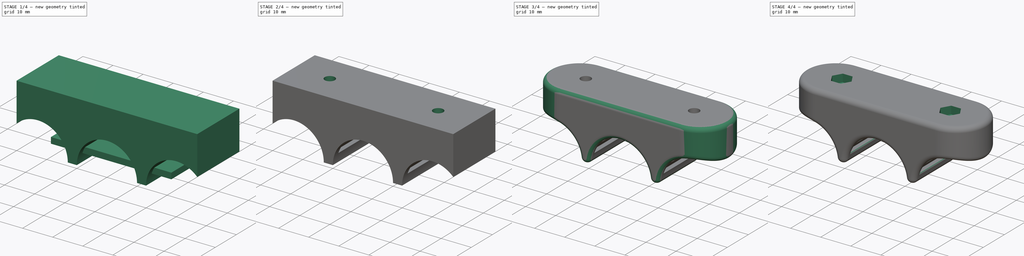
[diagram: build sequence overview — one tinted view per stage of 4, left to right]
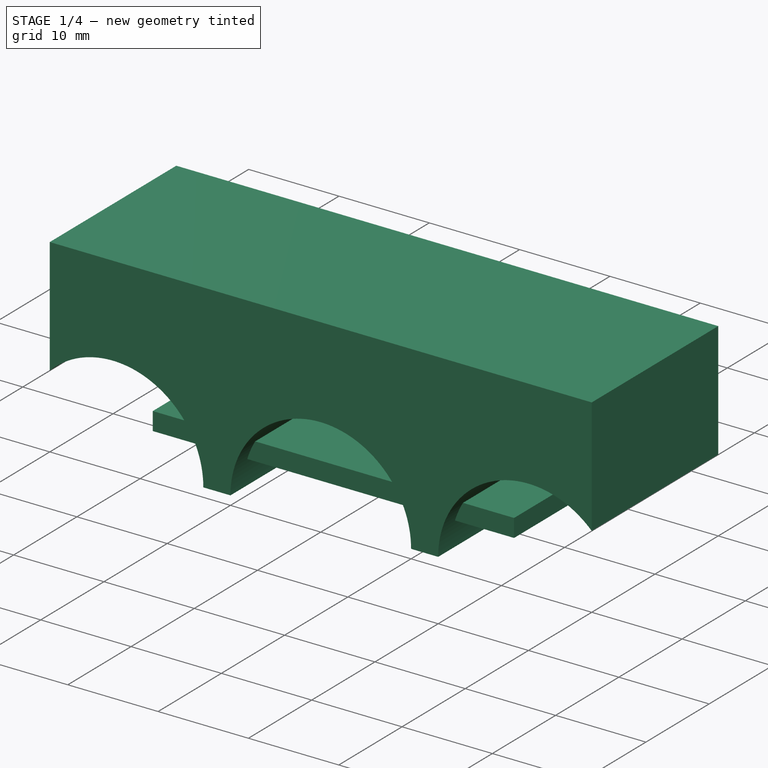
[diagram: stage 1 of 4 — iso view after this stage's code; geometry added in this stage tinted green]
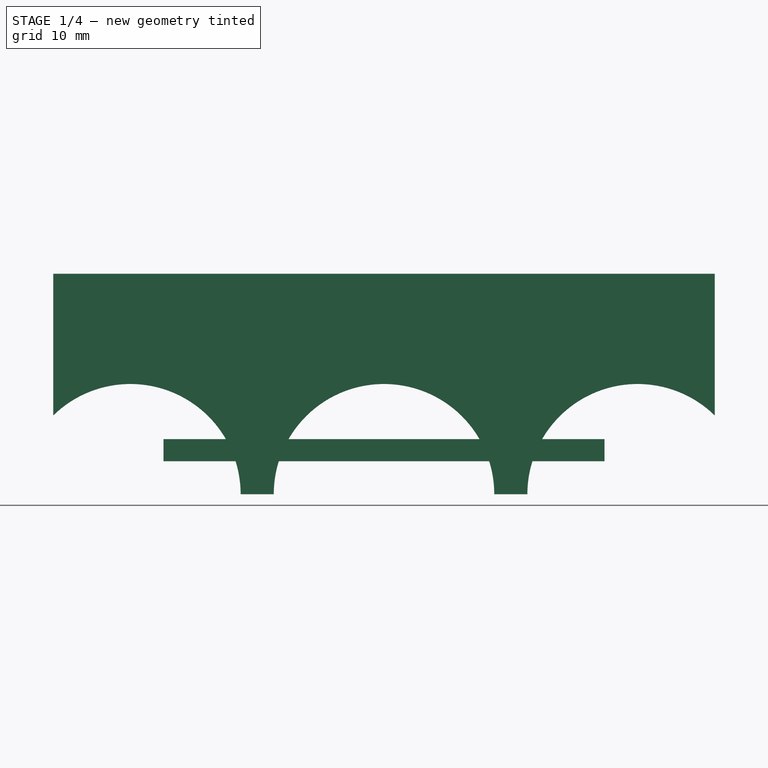
[diagram: stage 1 of 4 — front view after this stage's code; geometry added in this stage tinted green]
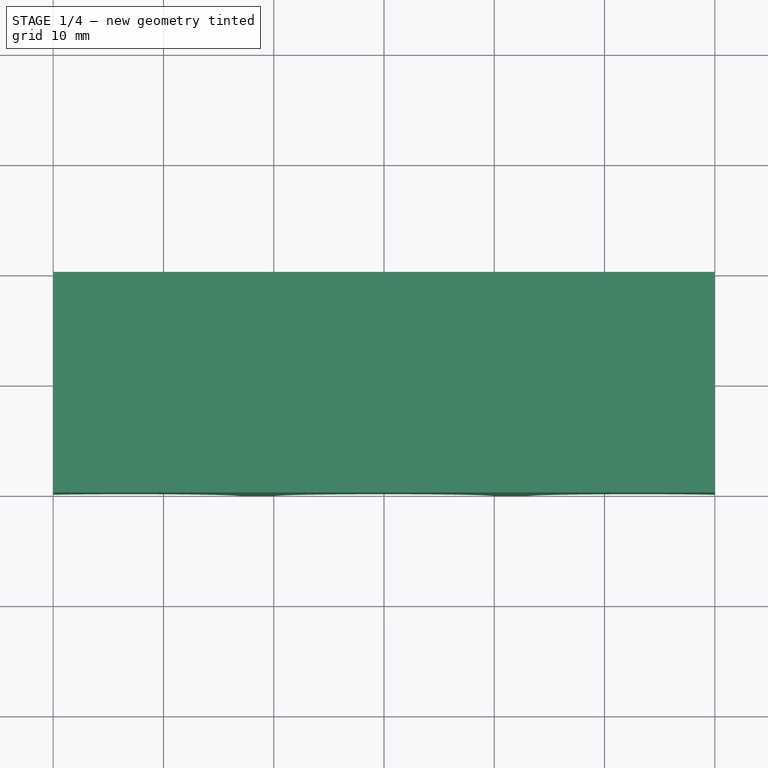
[diagram: stage 1 of 4 — top view after this stage's code; geometry added in this stage tinted green]
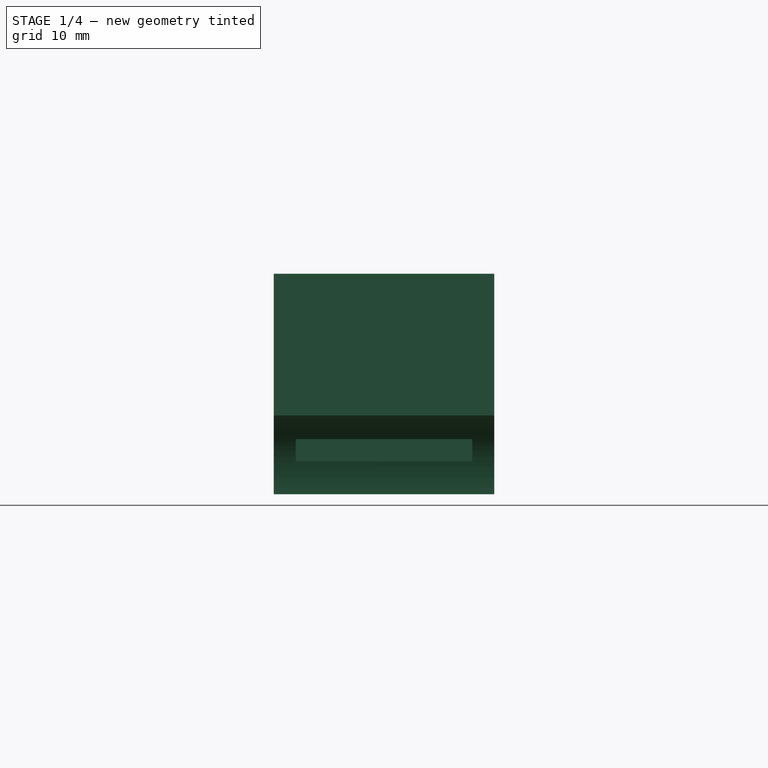
[diagram: stage 1 of 4 — right view after this stage's code; geometry added in this stage tinted green]
FCSTD DOCUMENT  (FreeCAD 0.22R36996 (Git))
Label: Finger_Jingle_test
License: All rights reserved
objects: Sketcher::SketchObject×6, PartDesign::Fillet×4, PartDesign::Pad×3, PartDesign::Pocket×3, PartDesign::Body×3, PartDesign::Chamfer×2, PartDesign::Plane×1, PartDesign::Boolean×1
note: 35 computed .brp shape members not serialized (recipe doc carries the construction recipe); baked Part::Feature solids carry a one-line shape summary decoded from their .brp

FEATURE [Sketcher::SketchObject] Sketch
  AttachmentSupport = -> [XZ_Plane]
  FullyConstrained = true
  MapMode = 5
  Placement = pos=(0,0,0) rot=(1,0,0;1.5708rad)
  sketch-geometry (8):
    g0: LineSegment StartX=-30 StartY=20 StartZ=0 EndX=-30 EndY=7.14143 EndZ=0
    g1: LineSegment StartX=-13 StartY=1.2e-15 StartZ=0 EndX=-10 EndY=1.2e-15 EndZ=0
    g2: LineSegment StartX=30 StartY=7.14143 StartZ=0 EndX=30 EndY=20 EndZ=0
    g3: LineSegment StartX=30 StartY=20 StartZ=0 EndX=-30 EndY=20 EndZ=0
    g4: ArcOfCircle CenterX=0 CenterY=0 CenterZ=0 NormalX=0 NormalY=0 NormalZ=1 AngleXU=0 Radius=10 StartAngle=0 EndAngle=3.14159
    g5: ArcOfCircle CenterX=-23 CenterY=0 CenterZ=0 NormalX=0 NormalY=0 NormalZ=1 AngleXU=0 Radius=10 StartAngle=0 EndAngle=2.34619
    g6: ArcOfCircle CenterX=23 CenterY=5e-16 CenterZ=0 NormalX=0 NormalY=0 NormalZ=1 AngleXU=0 Radius=10 StartAngle=0.795399 EndAngle=3.14159
    g7: LineSegment StartX=10 StartY=1.7e-15 StartZ=0 EndX=13 EndY=1.7e-15 EndZ=0
  constraints (26):
    c: Coincident(g2,g3)
    c: Coincident(g3,g0)
    c: Vertical(g0)
    c: Vertical(g2)
    c: Horizontal(g1)
    c: Horizontal(g3)
    c: Radius(g4) = 10
    c: Coincident(g4,g-1)
    c: Radius(g5) = 10
    c: PointOnObject(g5,g-1)
    c: DistanceX(g5,g4) = 23
    c: Radius(g6) = 10
    c: PointOnObject(g6,g1)
    c: DistanceX(g4,g6) = 23
    c: Coincident(g5,g0)
    c: Coincident(g5,g1)
    c: Coincident(g1,g4)
    c: Coincident(g7,g4)
    c: Coincident(g7,g6)
    c: Coincident(g2,g6)
    c: DistanceX(g3,g3) = 60
    c: DistanceY(g4,g0) = 20
    c: DistanceX(g0,g4) = 30
    c: Horizontal(g7)
    c: DistanceY(g1,g4) = 0
    c: DistanceY(g4,g4) = 0
FEATURE [PartDesign::Pad] Pad
  Direction = (0,-1,2e-16)
  Length = 20
  Length2 = 10
  Placement = pos=(0,0,0) rot=(1,0,0;1.5708rad)
  Profile = -> Sketch
  ReferenceAxis = -> Sketch [N_Axis]
  Suppressed = false
  Type = 0
FEATURE [Sketcher::SketchObject] Sketch004
  AttachmentSupport = -> [YZ_Plane001]
  FullyConstrained = true
  MapMode = 5
  Placement = pos=(0,0,0) rot=(0.57735,0.57735,0.57735;2.0944rad)
  sketch-geometry (4):
    g0: LineSegment StartX=-18 StartY=5 StartZ=0 EndX=-18 EndY=3 EndZ=0
    g1: LineSegment StartX=-18 StartY=3 StartZ=0 EndX=-2 EndY=3 EndZ=0
    g2: LineSegment StartX=-2 StartY=3 StartZ=0 EndX=-2 EndY=5 EndZ=0
    g3: LineSegment StartX=-2 StartY=5 StartZ=0 EndX=-18 EndY=5 EndZ=0
  constraints (12):
    c: Coincident(g0,g1)
    c: Coincident(g1,g2)
    c: Coincident(g2,g3)
    c: Coincident(g3,g0)
    c: Vertical(g0)
    c: Vertical(g2)
    c: Horizontal(g1)
    c: Horizontal(g3)
    c: DistanceX(g3,g3) = 16
    c: DistanceY(g0,g0) = 2
    c: DistanceX(g1,g-1) = 2
    c: DistanceY(g-1,g1) = 3
FEATURE [PartDesign::Pad] Pad001
  Direction = (1,0,0)
  Length = 20
  Length2 = 20
  Placement = pos=(0,0,0) rot=(0.57735,0.57735,0.57735;2.0944rad)
  Profile = -> Sketch004
  ReferenceAxis = -> Sketch004 [N_Axis]
  Suppressed = false
  Type = 4
FEATURE [PartDesign::Body] Body001
  Group = -> [Sketch004,Pad001]
  Origin = -> Origin001
  Tip = -> Pad001
FEATURE [Sketcher::SketchObject] Sketch005
  AttachmentSupport = -> [YZ_Plane002]
  FullyConstrained = true
  MapMode = 5
  Placement = pos=(0,0,0) rot=(0.57735,0.57735,0.57735;2.0944rad)
  sketch-geometry (4):
    g0: LineSegment StartX=-18 StartY=5 StartZ=0 EndX=-18 EndY=3 EndZ=0
    g1: LineSegment StartX=-18 StartY=3 StartZ=0 EndX=-2 EndY=3 EndZ=0
    g2: LineSegment StartX=-2 StartY=3 StartZ=0 EndX=-2 EndY=5 EndZ=0
    g3: LineSegment StartX=-2 StartY=5 StartZ=0 EndX=-18 EndY=5 EndZ=0
  constraints (12):
    c: Coincident(g0,g1)
    c: Coincident(g1,g2)
    c: Coincident(g2,g3)
    c: Coincident(g3,g0)
    c: Vertical(g0)
    c: Vertical(g2)
    c: Horizontal(g1)
    c: Horizontal(g3)
    c: DistanceX(g3,g3) = 16
    c: DistanceY(g0,g0) = 2
    c: DistanceX(g1,g-1) = 2
    c: DistanceY(g-1,g1) = 3
FEATURE [PartDesign::Pad] Pad002
  Direction = (1,0,0)
  Length = 20
  Length2 = 20
  Placement = pos=(0,0,0) rot=(0.57735,0.57735,0.57735;2.0944rad)
  Profile = -> Sketch005
  ReferenceAxis = -> Sketch005 [N_Axis]
  Suppressed = false
  Type = 4
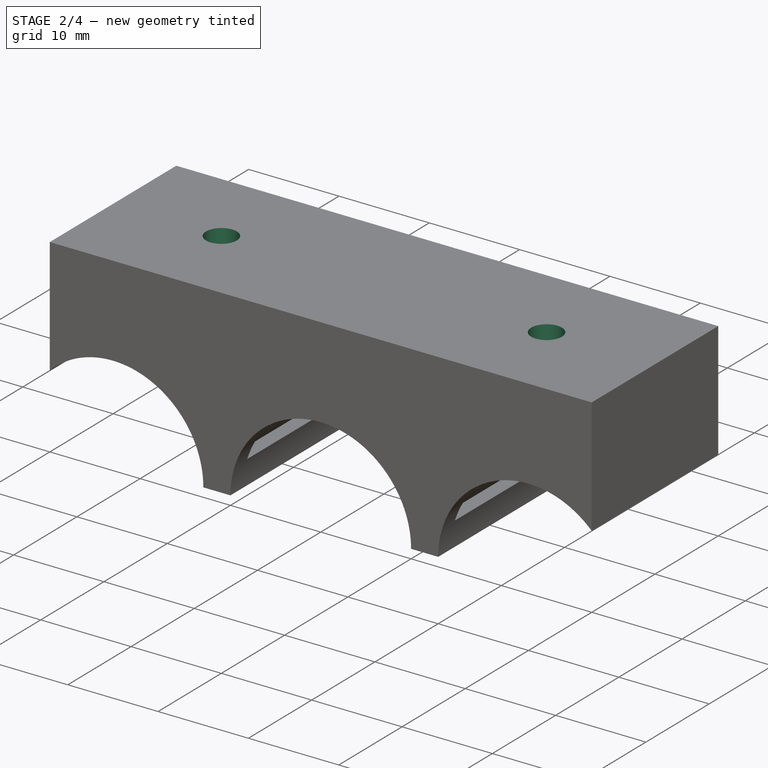
[diagram: stage 2 of 4 — iso view after this stage's code; geometry added in this stage tinted green]
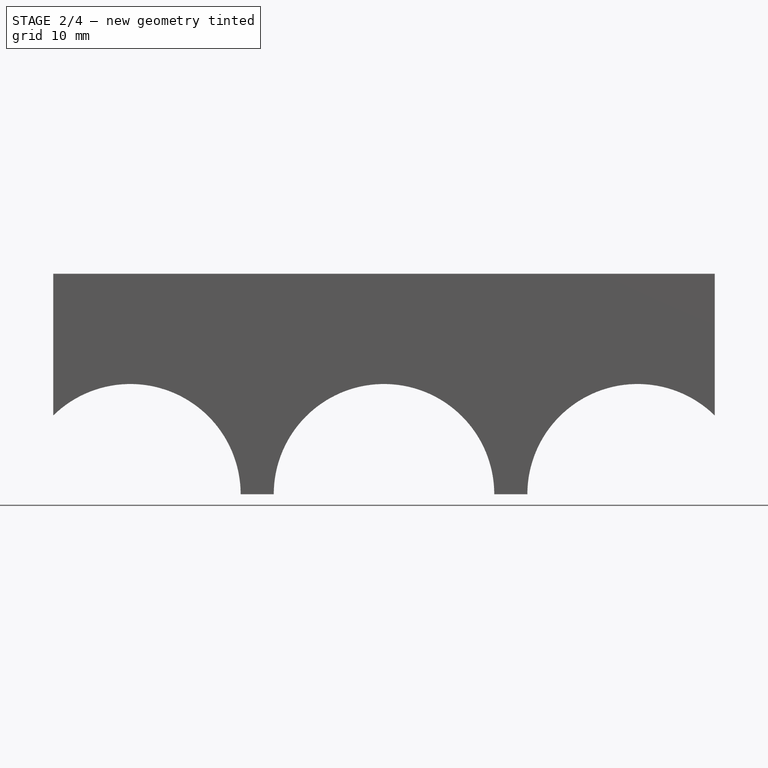
[diagram: stage 2 of 4 — front view after this stage's code; geometry added in this stage tinted green]
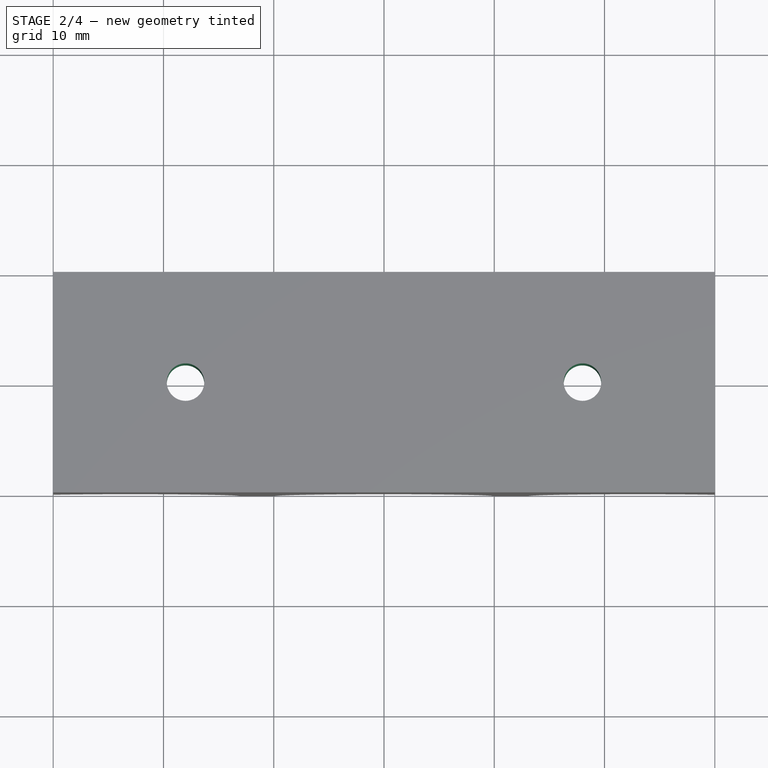
[diagram: stage 2 of 4 — top view after this stage's code; geometry added in this stage tinted green]
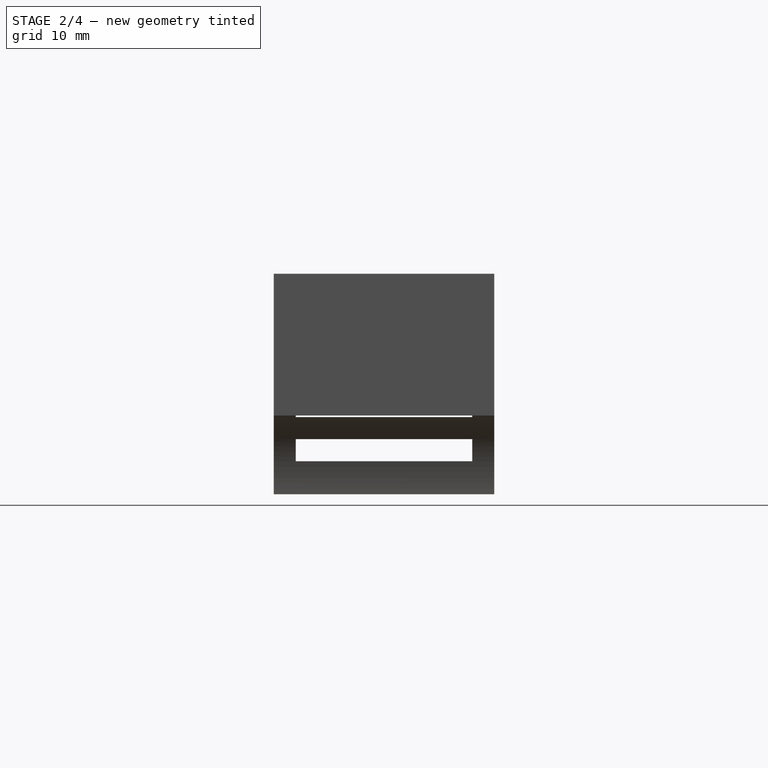
[diagram: stage 2 of 4 — right view after this stage's code; geometry added in this stage tinted green]
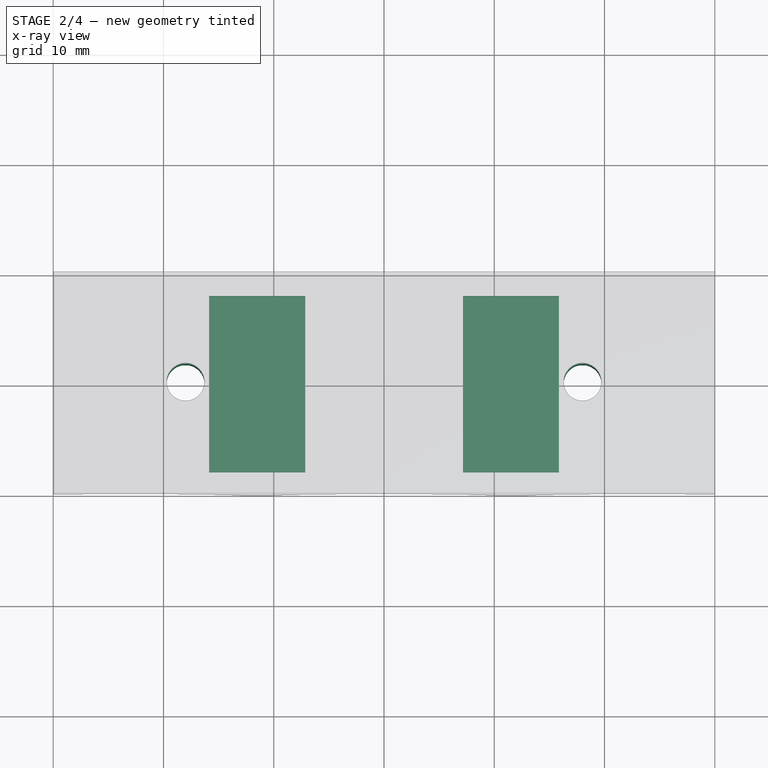
[diagram: stage 2 of 4 — x-ray composite at the top view; earlier geometry ghosted, this stage's added geometry solid]
FEATURE [Sketcher::SketchObject] Sketch001
  FullyConstrained = true
  MapMode = 5
  Placement = pos=(0,1.32e-14,20) rot=(0,0,1;3.14159rad)
  sketch-geometry (2):
    g0: Circle CenterX=-18 CenterY=10 CenterZ=0 NormalX=0 NormalY=0 NormalZ=1 AngleXU=0 Radius=1.7
    g1: Circle CenterX=18 CenterY=10 CenterZ=0 NormalX=0 NormalY=0 NormalZ=1 AngleXU=0 Radius=1.7
  constraints (6):
    c: Diameter(g0) = 3.4
    c: Diameter(g1) = 3.4
    c: DistanceY(g-1,g1) = 10
    c: DistanceY(g-1,g0) = 10
    c: DistanceX(g-1,g1) = 18
    c: DistanceX(g0,g-1) = 18
FEATURE [PartDesign::Pocket] Pocket
  BaseFeature = -> Pad
  Direction = (0,0,-1)
  Length = 14
  Length2 = 5
  Placement = pos=(0,0,0) rot=(1,0,0;1.5708rad)
  Profile = -> Sketch001
  ReferenceAxis = -> Sketch001 [N_Axis]
  Suppressed = false
  Type = 0
FEATURE [PartDesign::Plane] DatumPlane
  AttachmentOffset = pos=(-9,0,0) rot=(0,1,0;1.5708rad)
  Length = 70.9545
  MapMode = 5
  Placement = pos=(-30,0,9) rot=(1,0,0;3.14159rad)
  ResizeMode = 0
  Width = 60.9545
FEATURE [Sketcher::SketchObject] Sketch003
  AttachmentSupport = -> [DatumPlane]
  FullyConstrained = false
  MapMode = 5
  Placement = pos=(-30,0,9) rot=(1,0,0;3.14159rad)
  sketch-geometry (2):
    g0: Circle CenterX=12 CenterY=10 CenterZ=0 NormalX=0 NormalY=0 NormalZ=1 AngleXU=0 Radius=3
    g1: Circle CenterX=48.0093 CenterY=10 CenterZ=0 NormalX=0 NormalY=0 NormalZ=1 AngleXU=0 Radius=3
  constraints (5):
    c: Radius(g0) = 3
    c: Horizontal(g0,g1)
    c: DistanceX(g-1,g0) = 12
    c: DistanceY(g-1,g0) = 10
    c: Equal(g0,g1)
FEATURE [PartDesign::Chamfer] Chamfer
  Angle = 45
  Base = -> Pocket
  BaseFeature = -> Pocket
  ChamferType = 0
  FlipDirection = false
  Placement = pos=(0,0,0) rot=(1,0,0;1.5708rad)
  Size = 1.29
  Size2 = 1
  SupportTransform = false
  Suppressed = false
  UseAllEdges = false
FEATURE [PartDesign::Body] Body002
  Group = -> [Sketch005,Pad002]
  Origin = -> Origin002
  Placement = pos=(0,0,4) rot=(0,0,1;0rad)
  Tip = -> Pad002
FEATURE [PartDesign::Boolean] Boolean
  BaseFeature = -> Chamfer
  Group = -> [Body002,Body001]
  Suppressed = false
  Type = 1
  UsePlacement = true
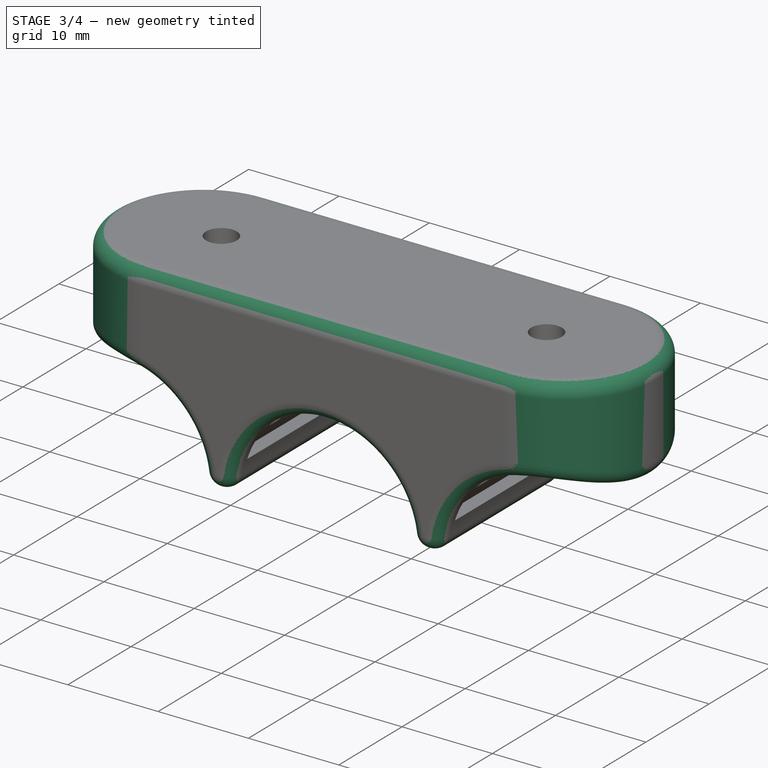
[diagram: stage 3 of 4 — iso view after this stage's code; geometry added in this stage tinted green]
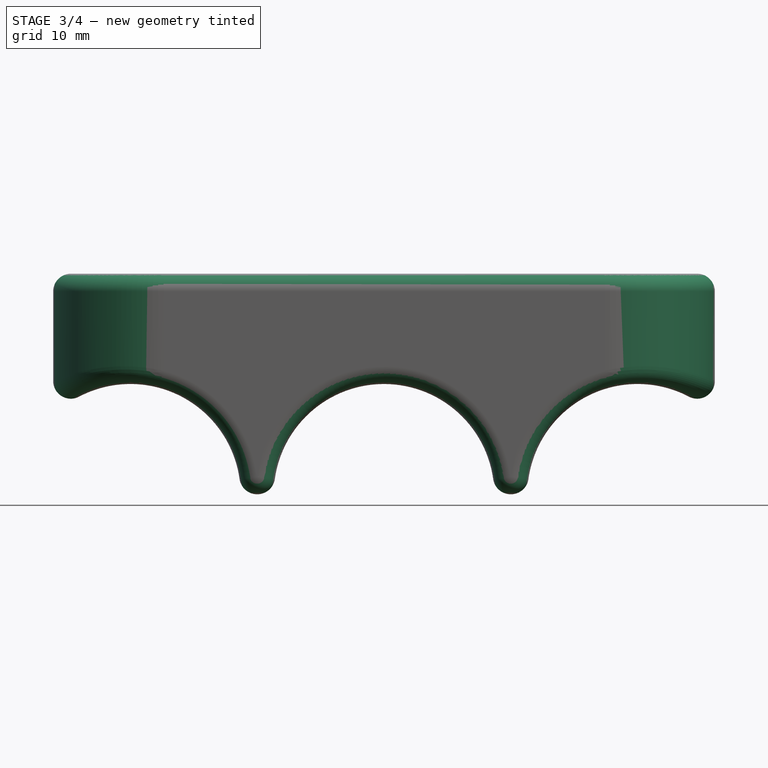
[diagram: stage 3 of 4 — front view after this stage's code; geometry added in this stage tinted green]
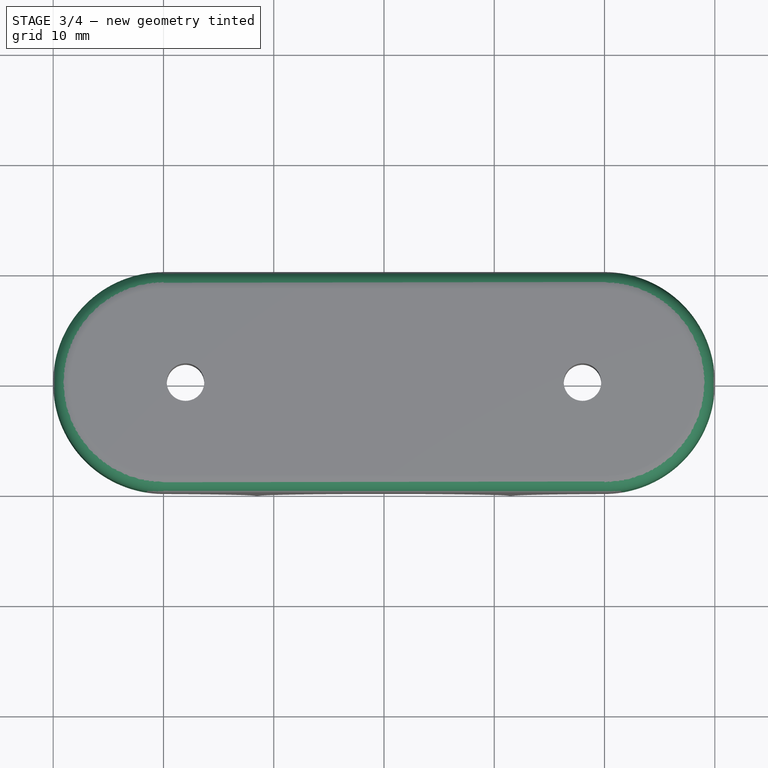
[diagram: stage 3 of 4 — top view after this stage's code; geometry added in this stage tinted green]
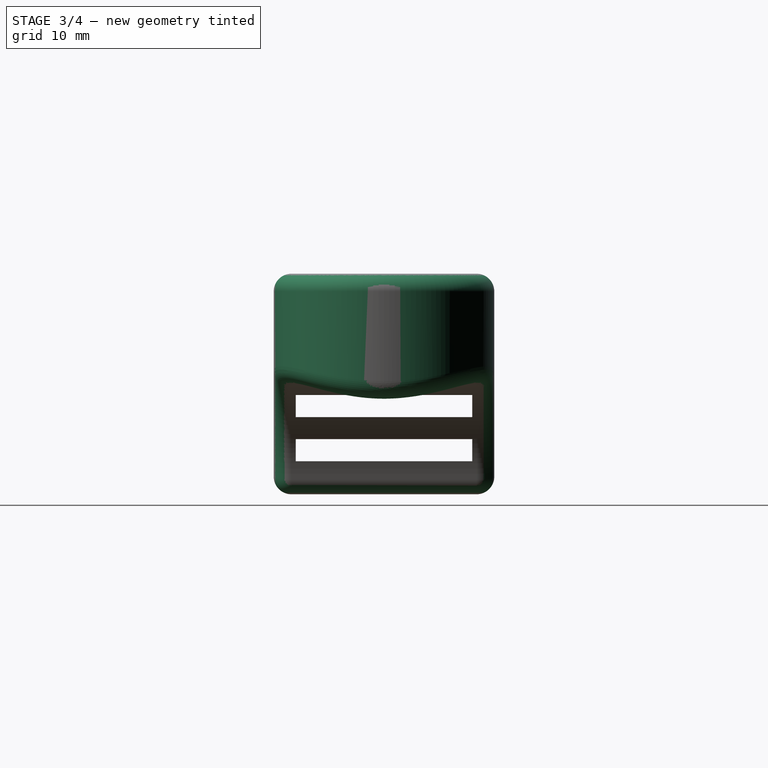
[diagram: stage 3 of 4 — right view after this stage's code; geometry added in this stage tinted green]
FEATURE [PartDesign::Fillet] Fillet
  Base = -> Boolean [Edge3,Edge4,Edge23,Edge28]
  BaseFeature = -> Boolean
  Radius = 9.999
  SupportTransform = false
  Suppressed = false
  UseAllEdges = false
FEATURE [PartDesign::Fillet] Fillet001
  Base = -> Fillet [Edge21,Edge24,Edge26,Edge27,Edge25,Edge23]
  BaseFeature = -> Fillet
  Radius = 1.6
  SupportTransform = false
  Suppressed = false
  UseAllEdges = false
FEATURE [PartDesign::Fillet] Fillet002
  Base = -> Fillet001 [Face25,Face11,Edge12,Edge33,Edge32,Edge48]
  BaseFeature = -> Fillet001
  Radius = 1.6
  SupportTransform = false
  Suppressed = false
  UseAllEdges = false
FEATURE [PartDesign::Pocket] Pocket001
  BaseFeature = -> Fillet002
  Direction = (0,0,1)
  Length = 3
  Length2 = 5
  Profile = -> Sketch003
  ReferenceAxis = -> Sketch003 [N_Axis]
  Suppressed = false
  Type = 0
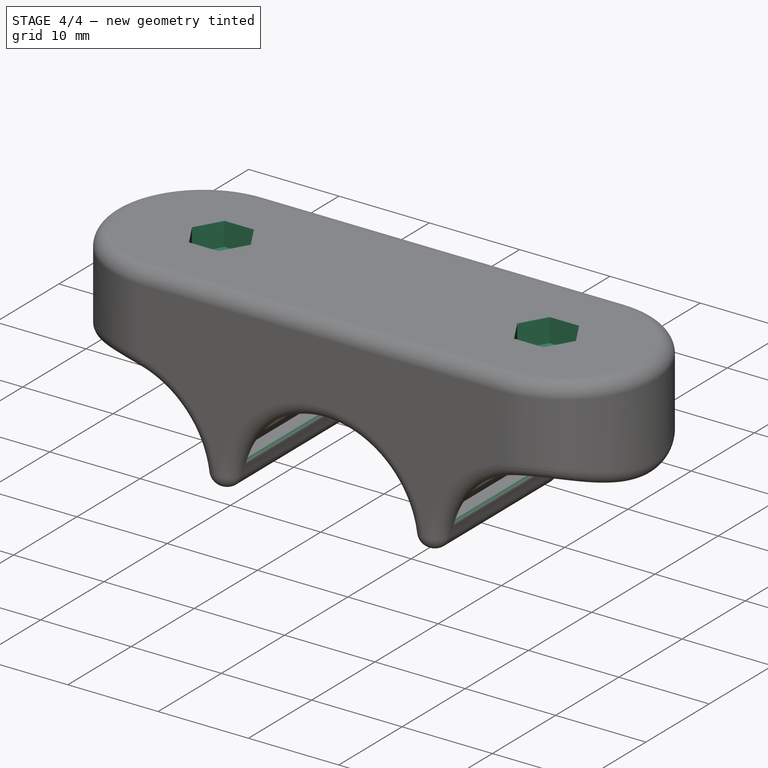
[diagram: stage 4 of 4 — iso view after this stage's code; geometry added in this stage tinted green]
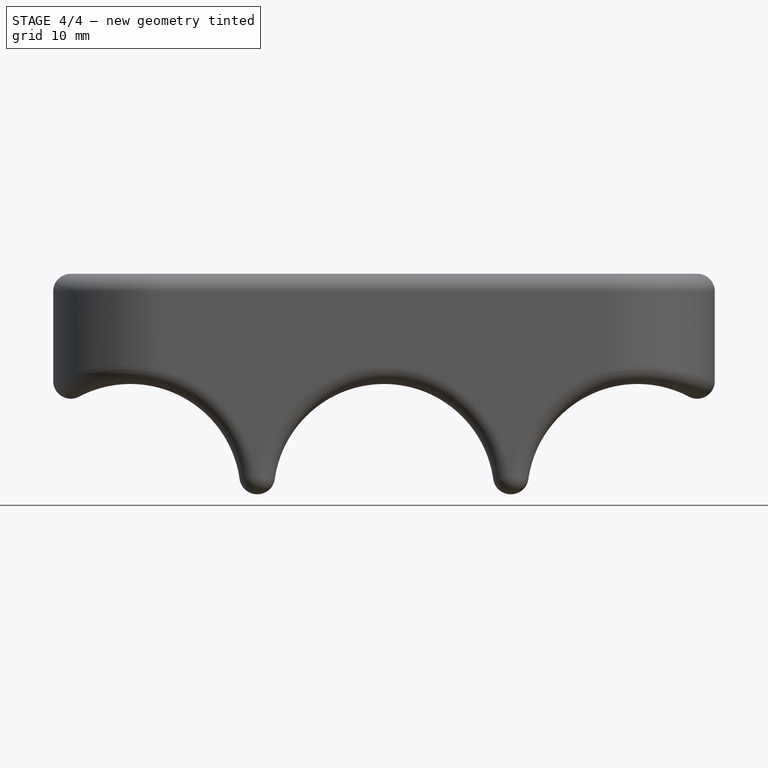
[diagram: stage 4 of 4 — front view after this stage's code; geometry added in this stage tinted green]
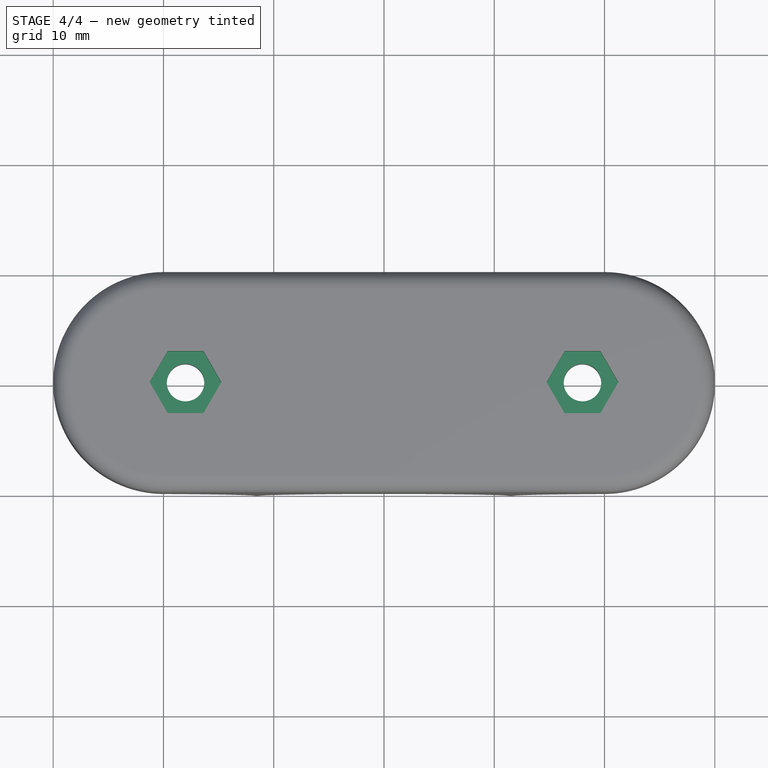
[diagram: stage 4 of 4 — top view after this stage's code; geometry added in this stage tinted green]
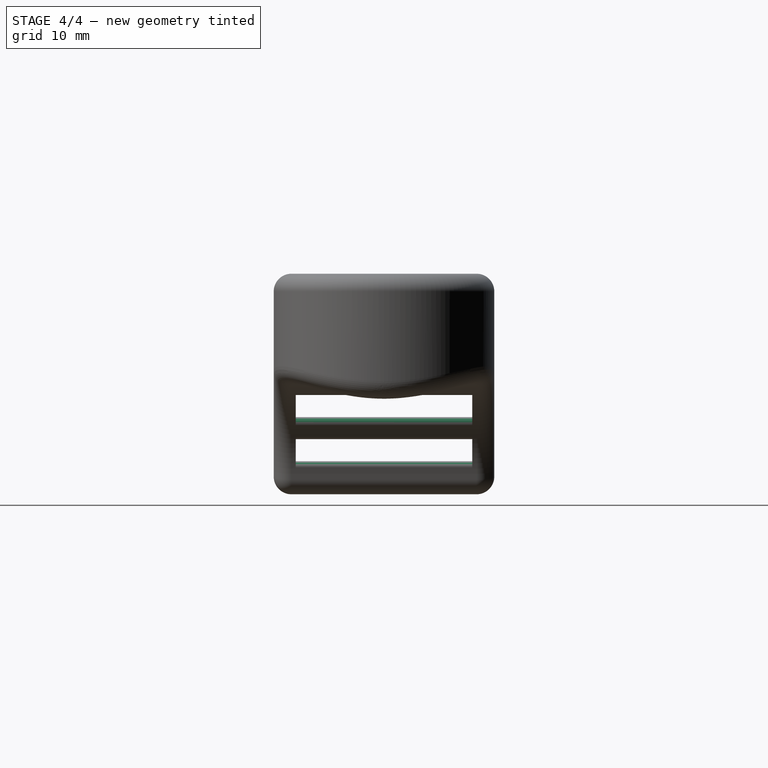
[diagram: stage 4 of 4 — right view after this stage's code; geometry added in this stage tinted green]
FEATURE [PartDesign::Chamfer] Chamfer001
  Angle = 45
  Base = -> Pocket001 [Edge108,Edge106]
  BaseFeature = -> Pocket001
  ChamferType = 0
  FlipDirection = false
  Size = 1.28
  Size2 = 1
  SupportTransform = false
  Suppressed = false
  UseAllEdges = false
FEATURE [PartDesign::Fillet] Fillet003
  Base = -> Chamfer001 [Edge71,Edge78,Edge75,Edge123,Edge133,Edge126,Edge159,Edge153,Edge156,Edge140,Edge142,Edge136]
  BaseFeature = -> Chamfer001
  Radius = 0.5
  SupportTransform = false
  Suppressed = false
  UseAllEdges = false
FEATURE [Sketcher::SketchObject] Sketch006
  AttachmentSupport = -> [Fillet003]
  ExternalGeometry = -> [Fillet003]
  FullyConstrained = true
  MapMode = 5
  Placement = pos=(0,1.55e-14,20) rot=(0,0,1;0rad)
  sketch-geometry (14):
    g0: LineSegment StartX=-14.75 StartY=-10 StartZ=0 EndX=-16.375 EndY=-7.18542 EndZ=0
    g1: LineSegment StartX=-16.375 StartY=-7.18542 StartZ=0 EndX=-19.625 EndY=-7.18542 EndZ=0
    g2: LineSegment StartX=-19.625 StartY=-7.18542 StartZ=0 EndX=-21.25 EndY=-10 EndZ=0
    g3: LineSegment StartX=-21.25 StartY=-10 StartZ=0 EndX=-19.625 EndY=-12.8146 EndZ=0
    g4: LineSegment StartX=-19.625 StartY=-12.8146 StartZ=0 EndX=-16.375 EndY=-12.8146 EndZ=0
    g5: LineSegment StartX=-16.375 StartY=-12.8146 StartZ=0 EndX=-14.75 EndY=-10 EndZ=0
    g6: Circle CenterX=-18 CenterY=-10 CenterZ=0 NormalX=0 NormalY=0 NormalZ=1 AngleXU=0 Radius=3.25
    g7: LineSegment StartX=21.25 StartY=-10 StartZ=0 EndX=19.625 EndY=-7.18542 EndZ=0
    g8: LineSegment StartX=19.625 StartY=-7.18542 StartZ=0 EndX=16.375 EndY=-7.18542 EndZ=0
    g9: LineSegment StartX=16.375 StartY=-7.18542 StartZ=0 EndX=14.75 EndY=-10 EndZ=0
    g10: LineSegment StartX=14.75 StartY=-10 StartZ=0 EndX=16.375 EndY=-12.8146 EndZ=0
    g11: LineSegment StartX=16.375 StartY=-12.8146 StartZ=0 EndX=19.625 EndY=-12.8146 EndZ=0
    g12: LineSegment StartX=19.625 StartY=-12.8146 StartZ=0 EndX=21.25 EndY=-10 EndZ=0
    g13: Circle CenterX=18 CenterY=-10 CenterZ=0 NormalX=0 NormalY=0 NormalZ=1 AngleXU=0 Radius=3.25
  constraints (33):
    c: Coincident(g0,g1)
    c: Coincident(g1,g2)
    c: Coincident(g2,g3)
    c: Coincident(g3,g4)
    c: Coincident(g4,g5)
    c: Coincident(g5,g0)
    c: Equal(g0, g1-g5) x5
    c: PointOnObject(g0,g6)
    c: PointOnObject(g1,g6)
    c: PointOnObject(g2,g6)
    c: PointOnObject(g3,g6)
    c: PointOnObject(g4,g6)
    c: PointOnObject(g5,g6)
    c: Coincident(g6,g-3)
    c: Diameter(g6) = 6.5
    c: Coincident(g7,g8)
    c: Coincident(g8,g9)
    c: Coincident(g9,g10)
    c: Coincident(g10,g11)
    c: Coincident(g11,g12)
    c: Coincident(g12,g7)
    c: Equal(g7, g8-g12) x5
    c: PointOnObject(g7,g13)
    c: PointOnObject(g8,g13)
    c: PointOnObject(g9,g13)
    c: PointOnObject(g10,g13)
    c: PointOnObject(g11,g13)
    c: PointOnObject(g12,g13)
    c: Equal(g13,g6)
    c: Horizontal(g13,g6)
    c: DistanceX(g-1,g13) = 18
    c: Horizontal(g4)
    c: Horizontal(g11)
FEATURE [PartDesign::Pocket] Pocket002
  BaseFeature = -> Fillet003
  Direction = (0,0,-1)
  Length = 2.6
  Length2 = 5
  Profile = -> Sketch006
  ReferenceAxis = -> Sketch006 [N_Axis]
  Suppressed = false
  Type = 0
FEATURE [PartDesign::Body] Body
  Group = -> [Sketch,Pad,Sketch001,Pocket,DatumPlane,Sketch003,Chamfer,Boolean,Fillet,Fillet001,Fillet002,Pocket001,Chamfer001,Fillet003,Sketch006,Pocket002]
  Origin = -> Origin
  Tip = -> Pocket002
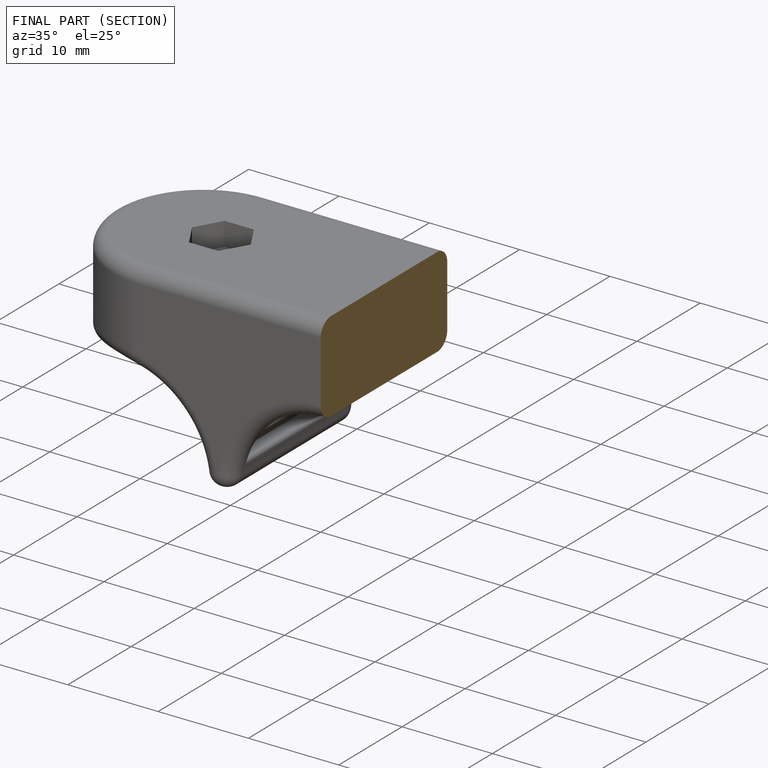
[diagram: finished part — half-section view (interior)]
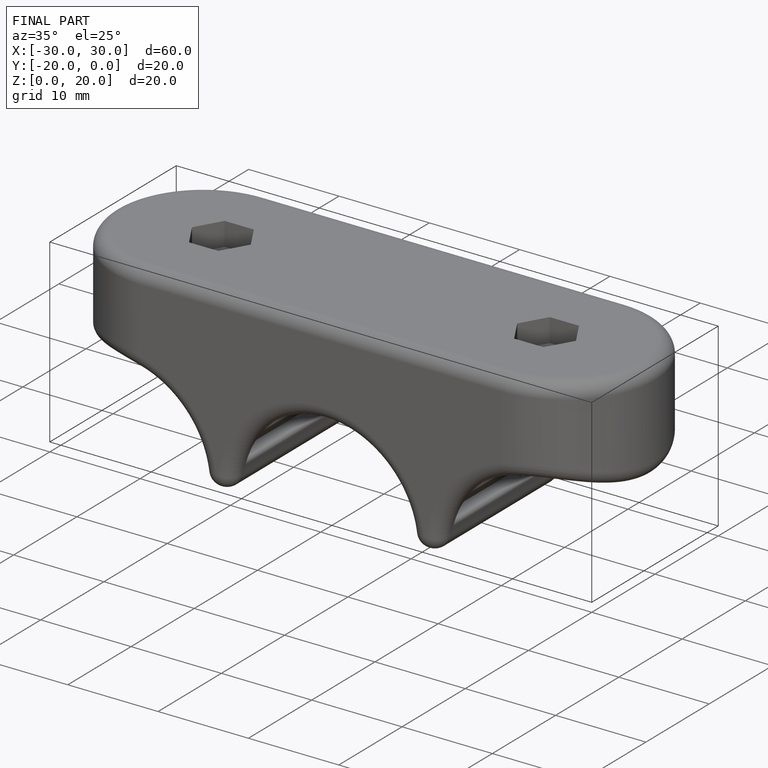
[diagram: finished part — iso view with bounding-box wireframe]
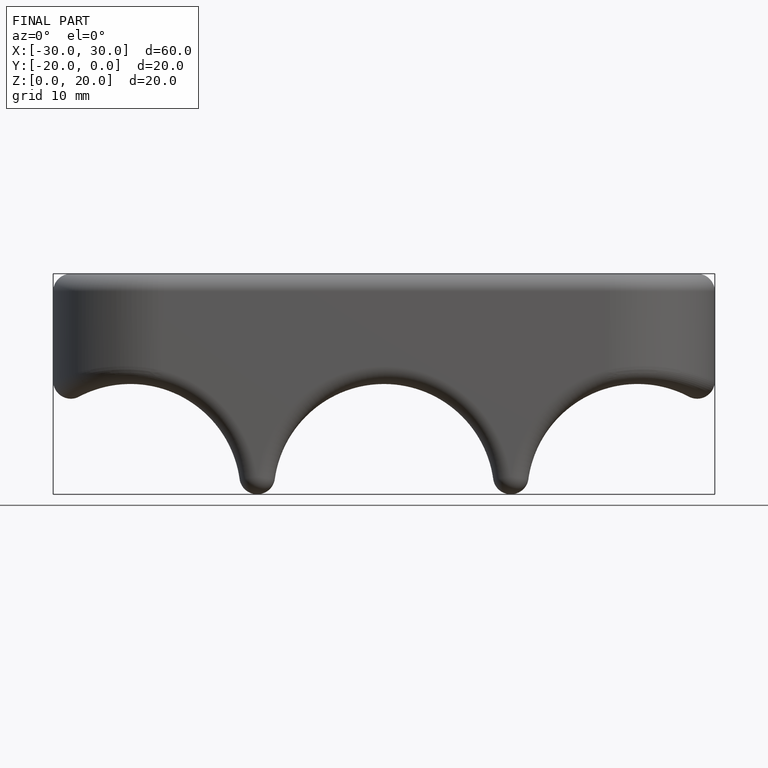
[diagram: finished part — front view with bounding-box wireframe]
